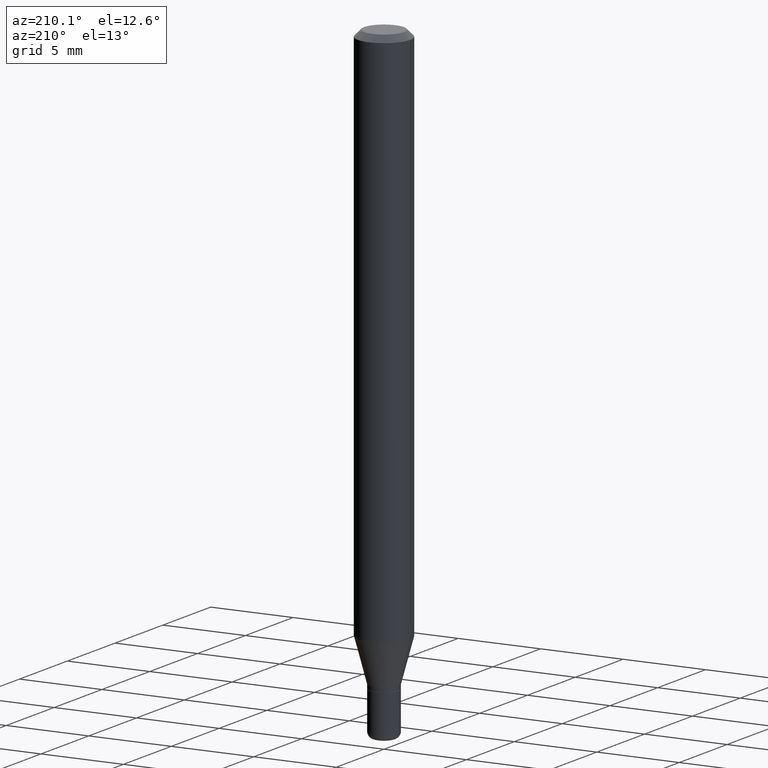
[diagram: clean part render]
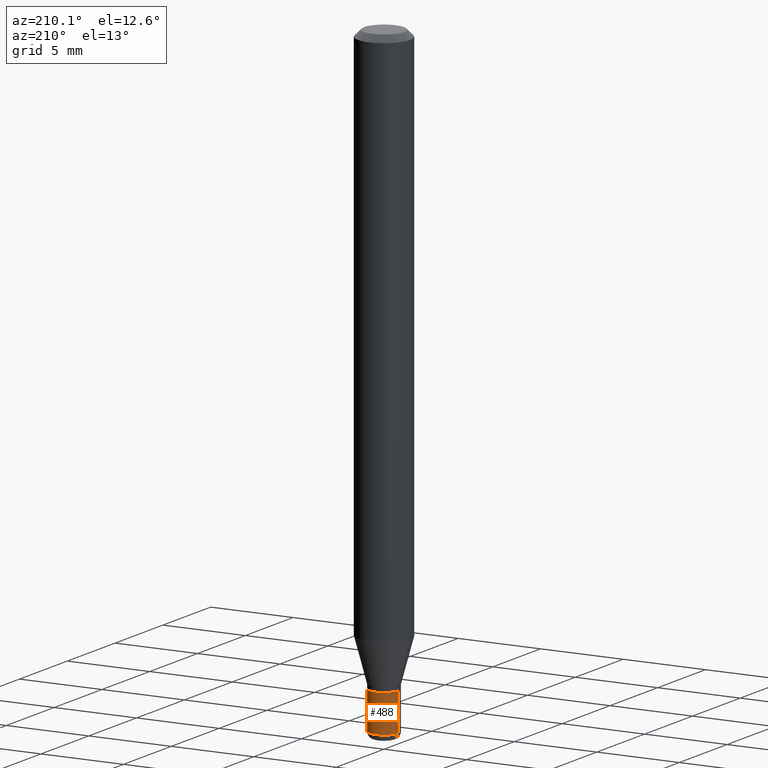
[diagram: same view with one face highlighted and labeled with its STEP entity id]
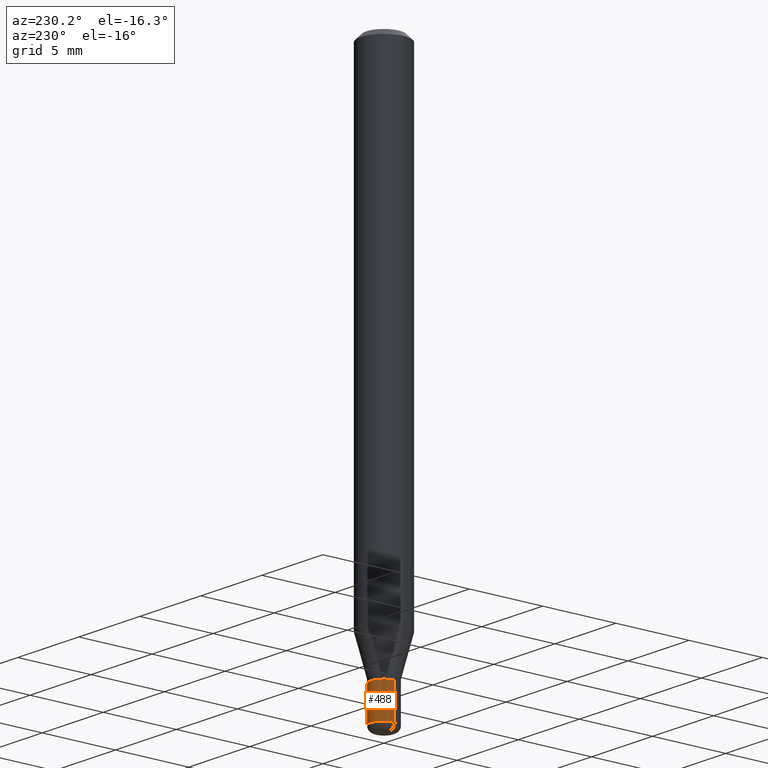
[diagram: same view with one face highlighted and labeled with its STEP entity id]
A machine part, auxiliary view. The second image highlights one B-rep face of the part: STEP entity #488.
A second angle (auxiliary view) of the same face is appended — the face is thin or edge-on in the first view.
In plain terms, the highlighted cylindrical surface (edge-blend (fillet) strip) has radius 0.889 mm, axis along (-0, 0, 1).
Its self-contained STEP definition (entity closure, byte-faithful):
#7 = CARTESIAN_POINT ( 'NONE',  ( -0.03500000000000000333, -4.779043170418095363E-15, -1.395000000000000018 ) ) ;
#18 = LINE ( 'NONE', #95, #291 ) ;
#95 = CARTESIAN_POINT ( 'NONE',  ( 0.03499999999999999639, -2.444036937190192757E-16, 1.706661871528577457E-30 ) ) ;
#124 = DIRECTION ( 'NONE',  ( -2.445468806185136877E-29, 3.491481338843145188E-15, 1.000000000000000000 ) ) ;
#131 = DIRECTION ( 'NONE',  ( -2.445468806185136597E-29, 3.491481338843145583E-15, 1.000000000000000000 ) ) ;
#134 = VECTOR ( 'NONE', #124, 39.37007874015748143 ) ;
#191 = EDGE_LOOP ( 'NONE', ( #514, #465, #312, #467 ) ) ;
#202 = CYLINDRICAL_SURFACE ( 'NONE', #385, 0.03499999999999999639 ) ;
#227 = EDGE_CURVE ( 'NONE', #355, #463, #376, .T. ) ;
#253 = CARTESIAN_POINT ( 'NONE',  ( -0.03499999999999999639, 2.486899575160350394E-16, -1.721627281589216757E-30 ) ) ;
#291 = VECTOR ( 'NONE', #334, 39.37007874015748143 ) ;
#294 = CARTESIAN_POINT ( 'NONE',  ( -0.03499999999999998945, -4.779043170418095363E-15, -1.485000000000000098 ) ) ;
#299 = CARTESIAN_POINT ( 'NONE',  ( 3.411428984628265351E-29, -4.870616467686188228E-15, -1.395000000000000018 ) ) ;
#301 = AXIS2_PLACEMENT_3D ( 'NONE', #303, #131, #416 ) ;
#303 = CARTESIAN_POINT ( 'NONE',  ( 3.631521177184928138E-29, -5.184849788182071492E-15, -1.485000000000000098 ) ) ;
#312 = ORIENTED_EDGE ( 'NONE', *, *, #494, .F. ) ;
#332 = CIRCLE ( 'NONE', #499, 0.03500000000000000333 ) ;
#334 = DIRECTION ( 'NONE',  ( -2.445468806185136877E-29, 3.491481338843145188E-15, 1.000000000000000000 ) ) ;
#336 = DIRECTION ( 'NONE',  ( 1.000000000000000000, -6.982962677686276966E-15, 0.000000000000000000 ) ) ;
#348 = VERTEX_POINT ( 'NONE', #497 ) ;
#355 = VERTEX_POINT ( 'NONE', #400 ) ;
#368 = CARTESIAN_POINT ( 'NONE',  ( 0.000000000000000000, 0.000000000000000000, 0.000000000000000000 ) ) ;
#370 = LINE ( 'NONE', #253, #134 ) ;
#376 = CIRCLE ( 'NONE', #301, 0.03499999999999998945 ) ;
#385 = AXIS2_PLACEMENT_3D ( 'NONE', #368, #447, #411 ) ;
#400 = CARTESIAN_POINT ( 'NONE',  ( 0.03499999999999998945, -5.429253481901091458E-15, -1.485000000000000098 ) ) ;
#404 = DIRECTION ( 'NONE',  ( -2.445468806185136597E-29, 3.491481338843145583E-15, 1.000000000000000000 ) ) ;
#411 = DIRECTION ( 'NONE',  ( 1.000000000000000000, -6.982962677686265922E-15, 4.876176775795936353E-29 ) ) ;
#416 = DIRECTION ( 'NONE',  ( 1.000000000000000000, -6.982962677686280121E-15, 0.000000000000000000 ) ) ;
#447 = DIRECTION ( 'NONE',  ( -2.445468806185136597E-29, 3.491481338843145583E-15, 1.000000000000000000 ) ) ;
#456 = EDGE_CURVE ( 'NONE', #463, #506, #370, .T. ) ;
#463 = VERTEX_POINT ( 'NONE', #294 ) ;
#465 = ORIENTED_EDGE ( 'NONE', *, *, #456, .T. ) ;
#467 = ORIENTED_EDGE ( 'NONE', *, *, #511, .F. ) ;
#488 = ADVANCED_FACE ( 'NONE', ( #489 ), #202, .T. ) ;
#489 = FACE_OUTER_BOUND ( 'NONE', #191, .T. ) ;
#494 = EDGE_CURVE ( 'NONE', #348, #506, #332, .T. ) ;
#497 = CARTESIAN_POINT ( 'NONE',  ( 0.03500000000000000333, -5.115020161405208194E-15, -1.395000000000000018 ) ) ;
#499 = AXIS2_PLACEMENT_3D ( 'NONE', #299, #404, #336 ) ;
#506 = VERTEX_POINT ( 'NONE', #7 ) ;
#511 = EDGE_CURVE ( 'NONE', #355, #348, #18, .T. ) ;
#514 = ORIENTED_EDGE ( 'NONE', *, *, #227, .T. ) ;